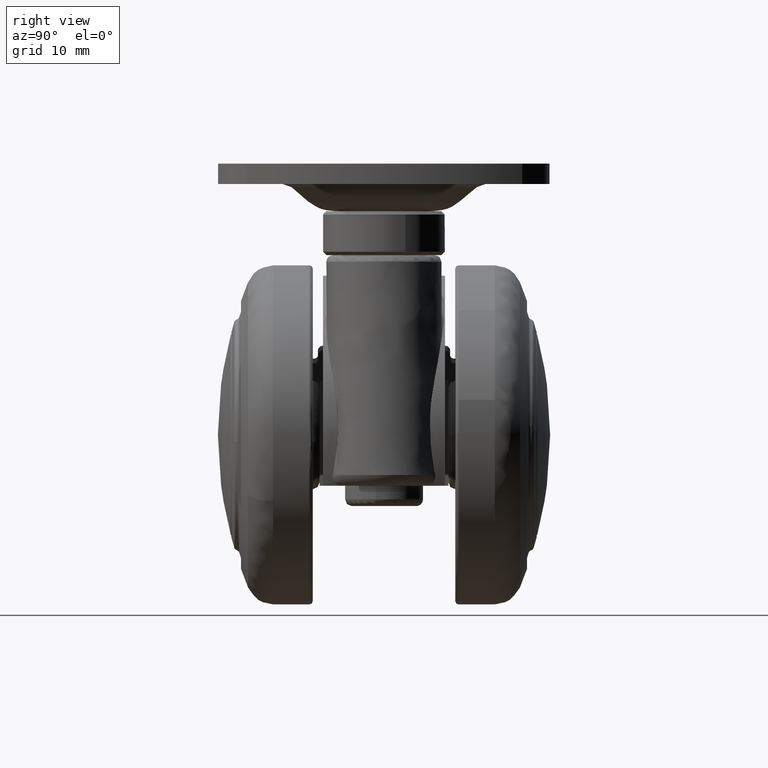
[diagram: clean part render]
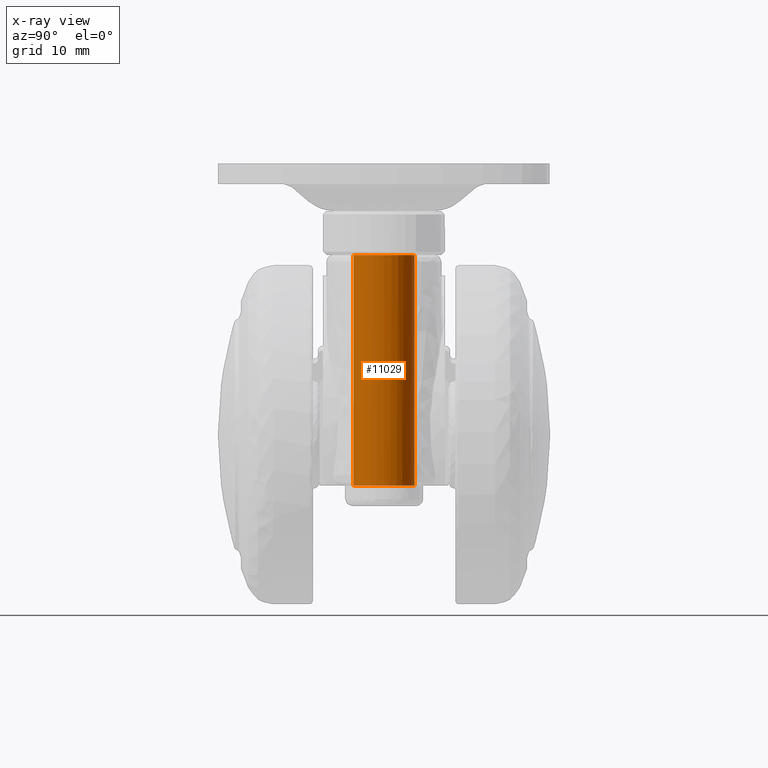
[diagram: x-ray — body ghosted, one internal face saturated and labeled with its STEP entity id]
A machine part, right view, then the same camera in x-ray: the body is ghosted and one INTERNAL B-rep face — a face not visible from any outside direction — is saturated and labeled: STEP entity #11029.
In plain terms, the highlighted face is a freeform B-spline surface patch.
Its self-contained STEP definition (entity closure, byte-faithful):
#10864=CARTESIAN_POINT('',(16.441423990571099,-4.465197962206212,26.500000000000000));
#10865=VERTEX_POINT('',#10864);
#10879=CARTESIAN_POINT('',(16.441430532839370,-4.465198780604559,-7.499999999999998));
#10880=VERTEX_POINT('',#10879);
#10881=CARTESIAN_POINT('',(16.441423990571099,-4.465197962206212,26.500000000000000));
#10882=CARTESIAN_POINT('',(16.441430532839370,-4.465198780604559,-7.499999999999998));
#10883=QUASI_UNIFORM_CURVE('',1,(#10881,#10882),.UNSPECIFIED.,.F.,.U.);
#10884=EDGE_CURVE('',#10865,#10880,#10883,.T.);
#10901=CARTESIAN_POINT('',(17.039269409921101,4.499828653787210,-7.500000000000000));
#10902=VERTEX_POINT('',#10901);
#10918=CARTESIAN_POINT('',(17.039269409903021,4.499828653787368,26.500000000000000));
#10919=VERTEX_POINT('',#10918);
#10920=CARTESIAN_POINT('',(17.039269409903021,4.499828653787368,26.500000000000000));
#10921=CARTESIAN_POINT('',(17.039269409921101,4.499828653787210,-7.500000000000000));
#10922=QUASI_UNIFORM_CURVE('',1,(#10920,#10921),.UNSPECIFIED.,.F.,.U.);
#10923=EDGE_CURVE('',#10919,#10902,#10922,.T.);
#10943=CARTESIAN_POINT('',(17.039269409742680,4.499828653788766,27.350000000000009));
#10944=CARTESIAN_POINT('',(21.539098063531458,4.460559244046083,27.350000000000009));
#10945=CARTESIAN_POINT('',(21.499828653788772,-0.039269409742685,27.350000000000009));
#10946=CARTESIAN_POINT('',(21.460559244046092,-4.539098063531455,27.350000000000009));
#10947=CARTESIAN_POINT('',(16.960730590257320,-4.499828653788772,27.350000000000009));
#10948=CARTESIAN_POINT('',(16.700074284688217,-4.497553940671242,27.350000000000001));
#10949=CARTESIAN_POINT('',(16.441423990640764,-4.465197962214926,27.350000000000005));
#10950=CARTESIAN_POINT('',(17.039269409742680,4.499828653788766,-8.371250000000003));
#10951=CARTESIAN_POINT('',(21.539098063531458,4.460559244046083,-8.371250000000003));
#10952=CARTESIAN_POINT('',(21.499828653788772,-0.039269409742685,-8.371250000000003));
#10953=CARTESIAN_POINT('',(21.460559244046092,-4.539098063531455,-8.371250000000003));
#10954=CARTESIAN_POINT('',(16.960730590257320,-4.499828653788772,-8.371250000000003));
#10955=CARTESIAN_POINT('',(16.700074284688217,-4.497553940671242,-8.371250000000003));
#10956=CARTESIAN_POINT('',(16.441423990640764,-4.465197962214926,-8.371250000000003));
#10964=(BOUNDED_SURFACE()B_SPLINE_SURFACE(2,1,((#10943,#10950),(#10944,#10951),(#10945,#10952),(#10946,#10953),(#10947,#10954),(#10948,#10955),(#10949,#10956)),.UNSPECIFIED.,.F.,.F.,.U.)B_SPLINE_SURFACE_WITH_KNOTS((3,2,2,3),(2,2),(0.0,7.455844122715704,14.911688245431410,15.508155775248669),(0.0,35.721250000000012),.UNSPECIFIED.)GEOMETRIC_REPRESENTATION_ITEM()RATIONAL_B_SPLINE_SURFACE(((1.0,1.0),(0.707106781186548,0.707106781186548),(1.0,1.0),(0.707106781186548,0.707106781186548),(1.0,1.0),(0.976568542494924,0.976568542494924),(0.956886118190660,0.956886118190660)))REPRESENTATION_ITEM('')SURFACE());
#10965=CARTESIAN_POINT('',(21.500000000000000,-2.755364E-015,26.500000000000000));
#10966=VERTEX_POINT('',#10965);
#10967=CARTESIAN_POINT('',(16.441423990571096,-4.465197962206212,26.499999999999996));
#10968=CARTESIAN_POINT('',(16.719627826028791,-4.500000000000002,26.500000000000000));
#10969=CARTESIAN_POINT('',(17.0,-4.500000000000003,26.500000000000000));
#10970=CARTESIAN_POINT('',(21.500000000000000,-4.500000000000004,26.500000000000007));
#10971=CARTESIAN_POINT('',(21.500000000000000,-2.755364E-015,26.500000000000000));
#10979=(BOUNDED_CURVE()B_SPLINE_CURVE(2,(#10967,#10968,#10969,#10970,#10971),.UNSPECIFIED.,.F.,.U.)B_SPLINE_CURVE_WITH_KNOTS((3,2,3),(0.728526071024036,0.750000000000000,1.0),.UNSPECIFIED.)CURVE()GEOMETRIC_REPRESENTATION_ITEM()RATIONAL_B_SPLINE_CURVE((0.954005430264505,0.974841727286634,1.0,0.707106781186547,1.0))REPRESENTATION_ITEM(''));
#10980=EDGE_CURVE('',#10865,#10966,#10979,.T.);
#10981=ORIENTED_EDGE('',*,*,#10980,.T.);
#10982=CARTESIAN_POINT('',(21.500000000000000,-2.755364E-015,26.500000000000000));
#10983=CARTESIAN_POINT('',(21.500000000000007,4.460900447359476,26.500000000000004));
#10984=CARTESIAN_POINT('',(17.039269409903028,4.499828653787368,26.500000000000000));
#10992=(BOUNDED_CURVE()B_SPLINE_CURVE(2,(#10982,#10983,#10984),.UNSPECIFIED.,.F.,.U.)B_SPLINE_CURVE_WITH_KNOTS((3,3),(0.0,0.248460105652460),.UNSPECIFIED.)CURVE()GEOMETRIC_REPRESENTATION_ITEM()RATIONAL_B_SPLINE_CURVE((1.0,0.708910879634882,0.996414028071355))REPRESENTATION_ITEM(''));
#10993=EDGE_CURVE('',#10966,#10919,#10992,.T.);
#10994=ORIENTED_EDGE('',*,*,#10993,.T.);
#10995=ORIENTED_EDGE('',*,*,#10923,.T.);
#10996=CARTESIAN_POINT('',(21.500000000000000,-2.755364E-015,-7.500000000000000));
#10997=VERTEX_POINT('',#10996);
#10998=CARTESIAN_POINT('',(17.039269409921097,4.499828653787210,-7.500000000000000));
#10999=CARTESIAN_POINT('',(21.499999999999996,4.460900447323635,-7.500000000000001));
#11000=CARTESIAN_POINT('',(21.500000000000000,-2.755364E-015,-7.500000000000000));
#11008=(BOUNDED_CURVE()B_SPLINE_CURVE(2,(#10998,#10999,#11000),.UNSPECIFIED.,.F.,.U.)B_SPLINE_CURVE_WITH_KNOTS((3,3),(0.751539894348955,1.0),.UNSPECIFIED.)CURVE()GEOMETRIC_REPRESENTATION_ITEM()RATIONAL_B_SPLINE_CURVE((0.996414028068080,0.708910879636540,1.0))REPRESENTATION_ITEM(''));
#11009=EDGE_CURVE('',#10902,#10997,#11008,.T.);
#11010=ORIENTED_EDGE('',*,*,#11009,.T.);
#11011=CARTESIAN_POINT('',(21.500000000000000,-2.755364E-015,-7.500000000000000));
#11012=CARTESIAN_POINT('',(21.500000000000000,-4.500000000000004,-7.500000000000000));
#11013=CARTESIAN_POINT('',(17.0,-4.500000000000003,-7.500000000000000));
#11014=CARTESIAN_POINT('',(16.719631135490040,-4.500000000000003,-7.500000000000001));
#11015=CARTESIAN_POINT('',(16.441430532839373,-4.465198780604559,-7.499999999999998));
#11023=(BOUNDED_CURVE()B_SPLINE_CURVE(2,(#11011,#11012,#11013,#11014,#11015),.UNSPECIFIED.,.F.,.U.)B_SPLINE_CURVE_WITH_KNOTS((3,2,3),(0.0,0.250000000000000,0.271473681878583),.UNSPECIFIED.)CURVE()GEOMETRIC_REPRESENTATION_ITEM()RATIONAL_B_SPLINE_CURVE((1.0,0.707106781186547,1.0,0.974842016779223,0.954005909785564))REPRESENTATION_ITEM(''));
#11024=EDGE_CURVE('',#10997,#10880,#11023,.T.);
#11025=ORIENTED_EDGE('',*,*,#11024,.T.);
#11026=ORIENTED_EDGE('',*,*,#10884,.F.);
#11027=EDGE_LOOP('',(#10981,#10994,#10995,#11010,#11025,#11026));
#11028=FACE_OUTER_BOUND('',#11027,.T.);
#11029=ADVANCED_FACE('',(#11028),#10964,.F.);